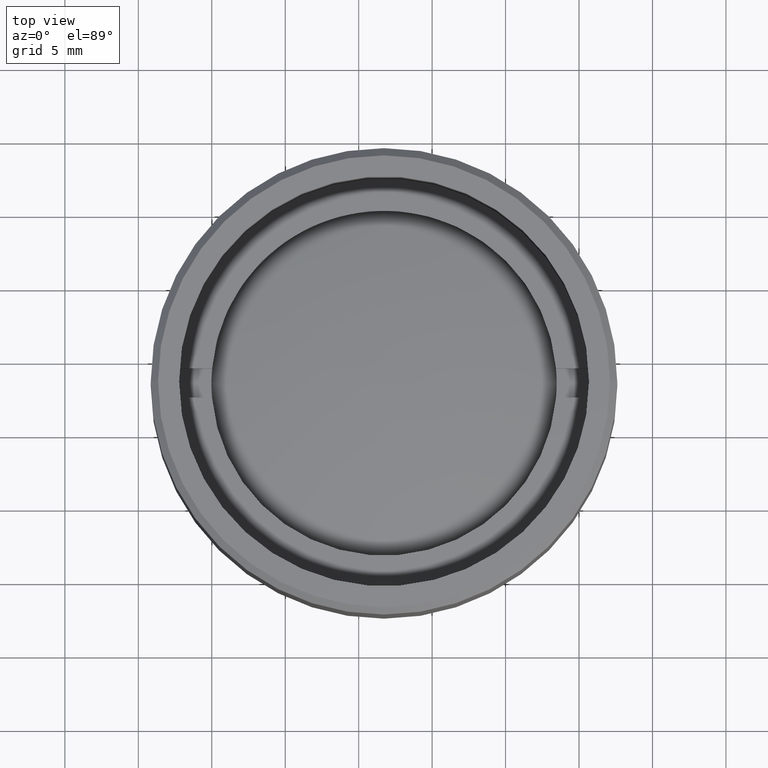
[diagram: clean part render]
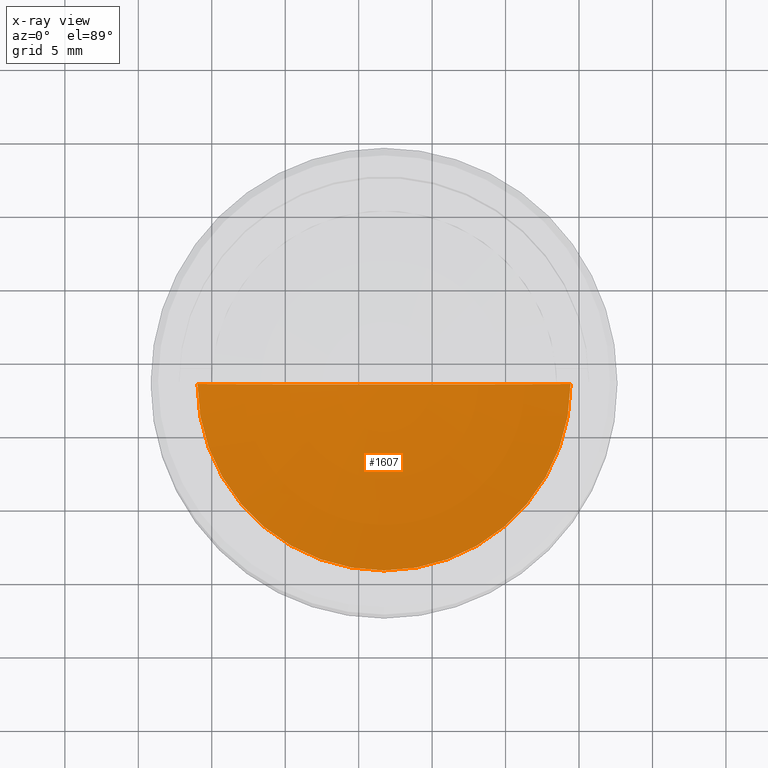
[diagram: x-ray — body ghosted, one internal face saturated and labeled with its STEP entity id]
A machine part, top view, then the same camera in x-ray: the body is ghosted and one INTERNAL B-rep face — a face not visible from any outside direction — is saturated and labeled: STEP entity #1607.
In plain terms, the highlighted spherical surface has radius 45.7 mm.
Its self-contained STEP definition (entity closure, byte-faithful):
#24 = AXIS2_PLACEMENT_3D ( 'NONE', #247, #1575, #380 ) ;
#172 = DIRECTION ( 'NONE',  ( 1.024442997624099940E-16, 0.000000000000000000, -1.000000000000000000 ) ) ;
#215 = ORIENTED_EDGE ( 'NONE', *, *, #1263, .F. ) ;
#247 = CARTESIAN_POINT ( 'NONE',  ( 0.000000000000000000, 0.000000000000000000, 41.70000000000000284 ) ) ;
#351 = DIRECTION ( 'NONE',  ( -1.000000000000000000, -1.224646799147351975E-16, 0.000000000000000000 ) ) ;
#380 = DIRECTION ( 'NONE',  ( -1.000000000000000000, 0.000000000000000000, -1.518357528207270980E-16 ) ) ;
#593 = AXIS2_PLACEMENT_3D ( 'NONE', #1388, #172, #1628 ) ;
#619 = CIRCLE ( 'NONE', #593, 12.69999999999999929 ) ;
#649 = SPHERICAL_SURFACE ( 'NONE', #24, 45.69999999999999574 ) ;
#760 = ORIENTED_EDGE ( 'NONE', *, *, #1139, .T. ) ;
#1000 = DIRECTION ( 'NONE',  ( -1.224646799147351975E-16, 1.000000000000000000, -1.124819836996391974E-32 ) ) ;
#1139 = EDGE_CURVE ( 'NONE', #1457, #1683, #619, .T. ) ;
#1176 = AXIS2_PLACEMENT_3D ( 'NONE', #1547, #1000, #351 ) ;
#1200 = CARTESIAN_POINT ( 'NONE',  ( 12.69999999999999929, 1.555301434917139813E-15, -2.199886104635849549 ) ) ;
#1263 = EDGE_CURVE ( 'NONE', #1457, #1683, #1568, .T. ) ;
#1294 = CARTESIAN_POINT ( 'NONE',  ( -12.69999999999999929, 0.000000000000000000, -2.199886104635849549 ) ) ;
#1356 = EDGE_LOOP ( 'NONE', ( #215, #760 ) ) ;
#1388 = CARTESIAN_POINT ( 'NONE',  ( 2.020562607398275365E-16, 0.000000000000000000, -2.199886104635849549 ) ) ;
#1415 = FACE_OUTER_BOUND ( 'NONE', #1356, .T. ) ;
#1457 = VERTEX_POINT ( 'NONE', #1200 ) ;
#1547 = CARTESIAN_POINT ( 'NONE',  ( 0.000000000000000000, 0.000000000000000000, 41.70000000000000284 ) ) ;
#1568 = CIRCLE ( 'NONE', #1176, 45.69999999999999574 ) ;
#1575 = DIRECTION ( 'NONE',  ( -1.518357528207270980E-16, 0.000000000000000000, 1.000000000000000000 ) ) ;
#1607 = ADVANCED_FACE ( 'NONE', ( #1415 ), #649, .T. ) ;
#1628 = DIRECTION ( 'NONE',  ( -1.000000000000000000, 0.000000000000000000, -1.024442997624098707E-16 ) ) ;
#1683 = VERTEX_POINT ( 'NONE', #1294 ) ;